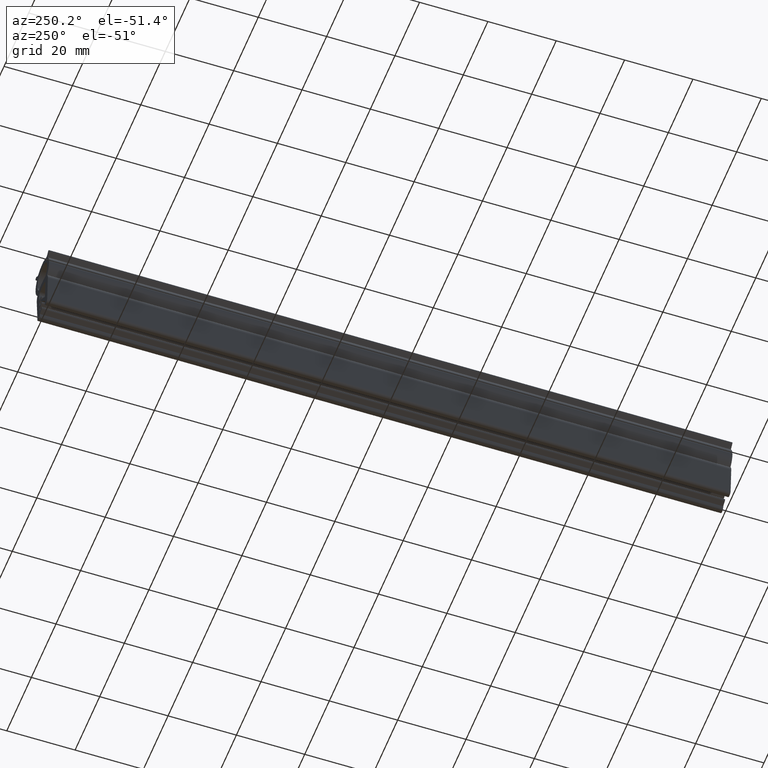
[diagram: clean part render]
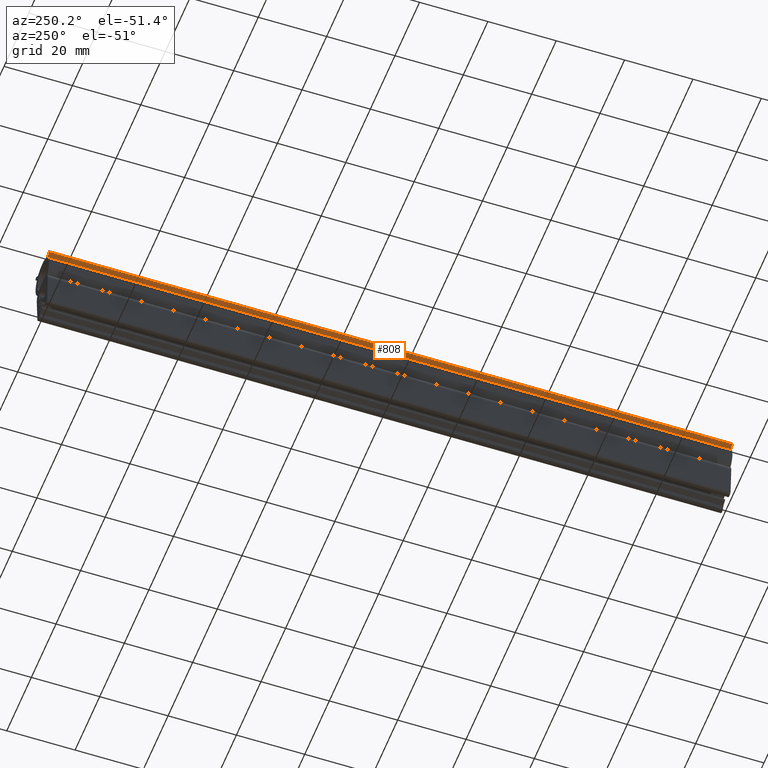
[diagram: same view with one face highlighted and labeled with its STEP entity id]
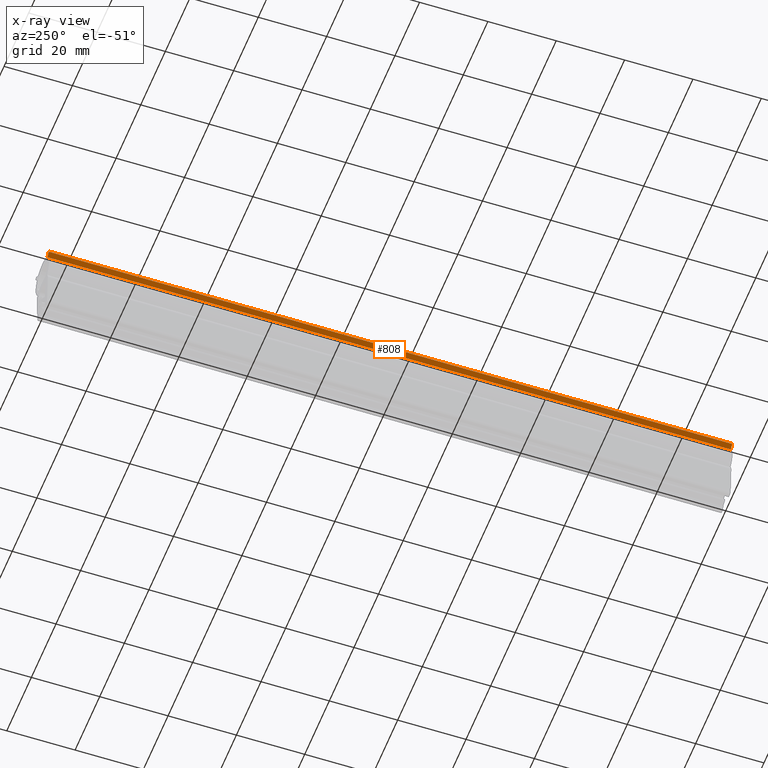
[diagram: x-ray of the same camera — body ghosted, the highlighted face saturated]
A machine part, auxiliary view. The second image highlights one B-rep face of the part: STEP entity #808.
The next image is the same camera in x-ray: the body ghosted, the highlighted face saturated — about 0% of this face is hidden behind the body in this view.
In plain terms, the highlighted face is a freeform B-spline surface patch.
Its self-contained STEP definition (entity closure, byte-faithful):
#51=CARTESIAN_POINT('',(-5.353553390594760,0.0,-0.853553395557597));
#52=VERTEX_POINT('',#51);
#70=CARTESIAN_POINT('',(-4.226531530193941,0.0,-1.980575255954845));
#71=VERTEX_POINT('',#70);
#72=CARTESIAN_POINT('',(-5.353553390594760,0.0,-0.853553395557597));
#73=CARTESIAN_POINT('',(-4.226531530193941,0.0,-1.980575255954845));
#74=QUASI_UNIFORM_CURVE('',1,(#72,#73),.UNSPECIFIED.,.F.,.U.);
#75=EDGE_CURVE('',#52,#71,#74,.T.);
#265=CARTESIAN_POINT('',(-5.353553390594760,200.0,-0.853553395557597));
#266=VERTEX_POINT('',#265);
#449=CARTESIAN_POINT('',(-4.226531530193941,200.0,-1.980575255954845));
#450=VERTEX_POINT('',#449);
#464=CARTESIAN_POINT('',(-5.353553390594760,200.0,-0.853553395557597));
#465=CARTESIAN_POINT('',(-4.226531530193941,200.0,-1.980575255954845));
#466=QUASI_UNIFORM_CURVE('',1,(#464,#465),.UNSPECIFIED.,.F.,.U.);
#467=EDGE_CURVE('',#266,#450,#466,.T.);
#783=CARTESIAN_POINT('',(-4.226531530193941,200.0,-1.980575255954845));
#784=CARTESIAN_POINT('',(-4.226531530193941,0.0,-1.980575255954845));
#785=QUASI_UNIFORM_CURVE('',1,(#783,#784),.UNSPECIFIED.,.F.,.U.);
#786=EDGE_CURVE('',#450,#71,#785,.T.);
#793=CARTESIAN_POINT('',(-4.170236805057495,-9.989999612361194,-2.036869981091113));
#794=CARTESIAN_POINT('',(-5.409848075425763,-9.989999612361194,-0.797258710726773));
#795=CARTESIAN_POINT('',(-4.170236805057495,209.990004976779200,-2.036869981091113));
#796=CARTESIAN_POINT('',(-5.409848075425763,209.990004976779200,-0.797258710726773));
#797=B_SPLINE_SURFACE_WITH_KNOTS('',1,1,((#793,#795),(#794,#796)),.UNSPECIFIED.,.F.,.F.,.U.,(2,2),(2,2),(0.041708345748484,0.958291624449193),(0.0,219.980004589140410),.UNSPECIFIED.);
#798=ORIENTED_EDGE('',*,*,#75,.F.);
#799=CARTESIAN_POINT('',(-5.353553390594760,200.0,-0.853553395557597));
#800=CARTESIAN_POINT('',(-5.353553390594760,0.0,-0.853553395557597));
#801=QUASI_UNIFORM_CURVE('',1,(#799,#800),.UNSPECIFIED.,.F.,.U.);
#802=EDGE_CURVE('',#266,#52,#801,.T.);
#803=ORIENTED_EDGE('',*,*,#802,.F.);
#804=ORIENTED_EDGE('',*,*,#467,.T.);
#805=ORIENTED_EDGE('',*,*,#786,.T.);
#806=EDGE_LOOP('',(#798,#803,#804,#805));
#807=FACE_OUTER_BOUND('',#806,.T.);
#808=ADVANCED_FACE('',(#807),#797,.T.);